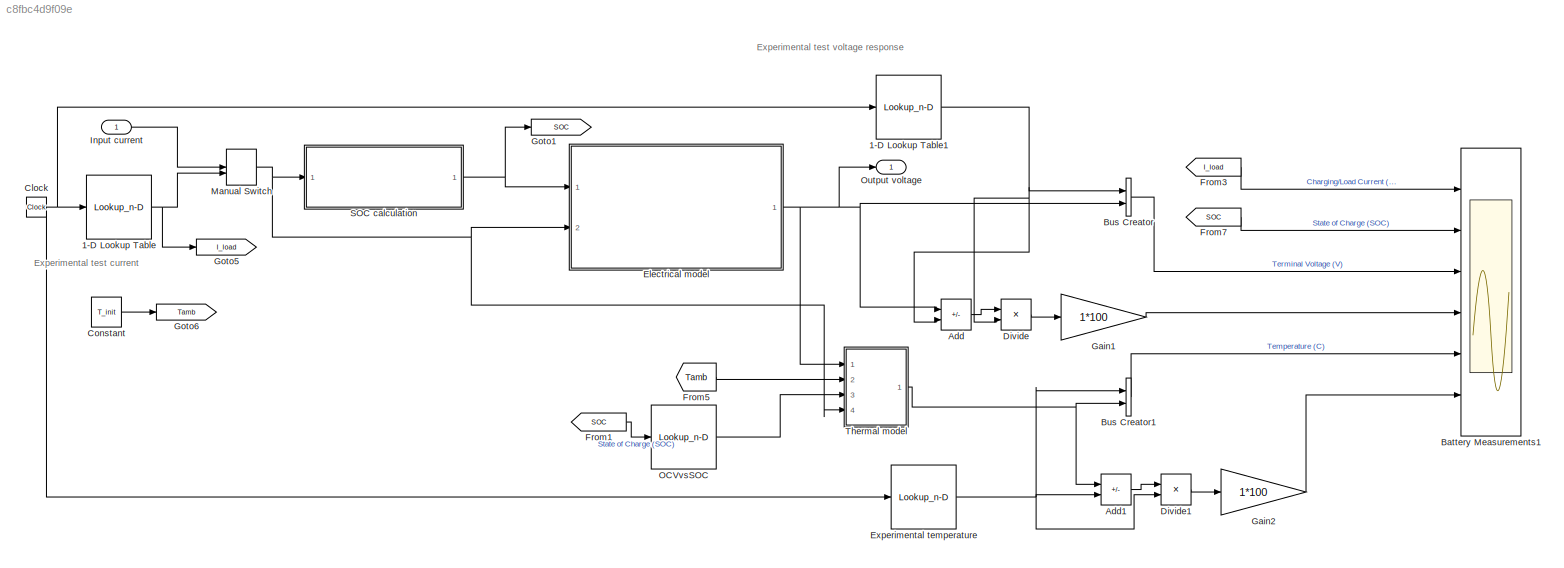
MODEL slx_c8fbc4d9f09e
KIND model
CONFIG AbsTol = 1e-3
CONFIG EnableMultiTasking = on
CONFIG FixedStep = 0.1
CONFIG MaxStep = 1
CONFIG MinStep = auto
CONFIG PreLoadFcn = ssc_lithium_cell_2RC_ini
CONFIG RelTol = 1e-3
CONFIG SampleTimeConstraint = Unconstrained
CONFIG SolverName = FixedStepAuto
CONFIG StartTime = 0.0
CONFIG StopTime = t_sim_end
BLOCK [Lookup_n-D] 1-D Lookup Table
  BreakpointsForDimension1 = Time_test
  InputPortMap = u0
  InternalRulePriority = Speed
  NumberOfTableDimensions = 1
  Ports = [1, 1]
  RndMeth = Simplest
  Table = Ibat_test
BLOCK [Lookup_n-D] 1-D Lookup Table1
  BreakpointsForDimension1 = Time_test
  InputPortMap = u0
  InternalRulePriority = Speed
  NumberOfTableDimensions = 1
  Ports = [1, 1]
  RndMeth = Simplest
  Table = Vbat_test
BLOCK [Sum] Add
  IconShape = rectangular
  Inputs = +-
  Ports = [2, 1]
BLOCK [Sum] Add1
  IconShape = rectangular
  Inputs = +-
  Ports = [2, 1]
BLOCK [Scope] Battery Measurements1
  Floating = off
  NumInputPorts = 6
  Ports = [6]
  ScopeSpecificationString = Simulink.scopes.TimeScopeBlockCfg('CurrentConfiguration', extmgr.ConfigurationSet(extmgr.Configuration('Core','General UI',true,'FigureColor',[0.501960784313725 0.501960784313725 0.501960784313725]),extmgr.Configuration('Core','Source UI',true),extmgr.Configuration('Sources','WiredSimulink',true,'DataLoggingSaveFormat','StructureWithTime','DataLoggingDecimation','1','DataLoggingVariableName','Scop...<+8017ch>
  Tag = PublishScope
BLOCK [BusCreator] Bus Creator
  DisplayOption = bar
  InheritFromInputs = on
  Inputs = 2
  Ports = [2, 1]
BLOCK [BusCreator] Bus Creator1
  DisplayOption = bar
  InheritFromInputs = on
  Inputs = 2
  Ports = [2, 1]
BLOCK [Clock] Clock
BLOCK [Constant] Constant
  Value = T_init
BLOCK [Product] Divide
  Inputs = */
  Ports = [2, 1]
BLOCK [Product] Divide1
  Inputs = */
  Ports = [2, 1]
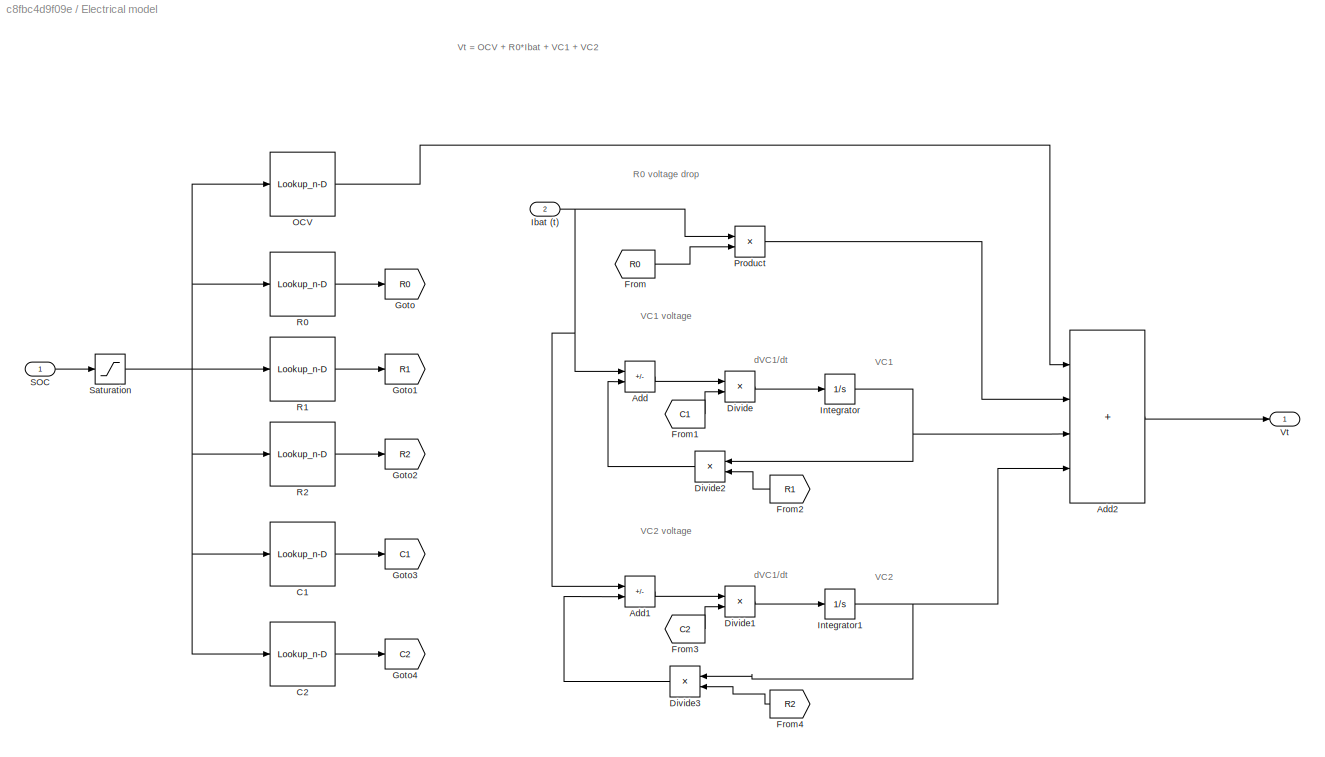
BLOCK [SubSystem] Electrical model
  Ports = [2, 1]
  RequestExecContextInheritance = off
BLOCK [Sum] Electrical model/Add
  IconShape = rectangular
  Inputs = +-
  Ports = [2, 1]
BLOCK [Sum] Electrical model/Add1
  IconShape = rectangular
  Inputs = +-
  Ports = [2, 1]
BLOCK [Sum] Electrical model/Add2
  IconShape = rectangular
  Inputs = ++++
  Ports = [4, 1]
BLOCK [Lookup_n-D] Electrical model/C1
  BreakpointsForDimension1 = SOC_LUT
  BreakpointsForDimension2 = Temperature_LUT
  InputPortMap = u0
  InternalRulePriority = Speed
  NumberOfTableDimensions = 1
  Ports = [1, 1]
  RndMeth = Simplest
  Table = C1_LUT
BLOCK [Lookup_n-D] Electrical model/C2
  BreakpointsForDimension1 = SOC_LUT
  BreakpointsForDimension2 = Temperature_LUT
  InputPortMap = u0
  InternalRulePriority = Speed
  NumberOfTableDimensions = 1
  Ports = [1, 1]
  RndMeth = Simplest
  Table = C2_LUT
BLOCK [Product] Electrical model/Divide
  Inputs = */
  Ports = [2, 1]
BLOCK [Product] Electrical model/Divide1
  Inputs = */
  Ports = [2, 1]
BLOCK [Product] Electrical model/Divide2
  Inputs = */
  Ports = [2, 1]
BLOCK [Product] Electrical model/Divide3
  Inputs = */
  Ports = [2, 1]
BLOCK [From] Electrical model/From
  GotoTag = R0
BLOCK [From] Electrical model/From1
  GotoTag = C1
BLOCK [From] Electrical model/From2
  GotoTag = R1
BLOCK [From] Electrical model/From3
  GotoTag = C2
BLOCK [From] Electrical model/From4
  GotoTag = R2
BLOCK [Goto] Electrical model/Goto
  GotoTag = R0
BLOCK [Goto] Electrical model/Goto1
  GotoTag = R1
BLOCK [Goto] Electrical model/Goto2
  GotoTag = R2
BLOCK [Goto] Electrical model/Goto3
  GotoTag = C1
BLOCK [Goto] Electrical model/Goto4
  GotoTag = C2
BLOCK [Inport] Electrical model/Ibat (t)
  Port = 2
BLOCK [Integrator] Electrical model/Integrator
  Ports = [1, 1]
BLOCK [Integrator] Electrical model/Integrator1
  Ports = [1, 1]
BLOCK [Lookup_n-D] Electrical model/OCV
  BreakpointsForDimension1 = SOC_LUT
  BreakpointsForDimension2 = Temperature_LUT
  InputPortMap = u0
  InternalRulePriority = Speed
  NumberOfTableDimensions = 1
  Ports = [1, 1]
  RndMeth = Simplest
  Table = Em_LUT
BLOCK [Product] Electrical model/Product
  Ports = [2, 1]
BLOCK [Lookup_n-D] Electrical model/R0
  BreakpointsForDimension1 = SOC_LUT
  BreakpointsForDimension2 = Temperature_LUT
  InputPortMap = u0
  InternalRulePriority = Speed
  NumberOfTableDimensions = 1
  Ports = [1, 1]
  RndMeth = Simplest
  Table = R0_LUT
BLOCK [Lookup_n-D] Electrical model/R1
  BreakpointsForDimension1 = SOC_LUT
  BreakpointsForDimension2 = Temperature_LUT
  InputPortMap = u0
  InternalRulePriority = Speed
  NumberOfTableDimensions = 1
  Ports = [1, 1]
  RndMeth = Simplest
  Table = R1_LUT
BLOCK [Lookup_n-D] Electrical model/R2
  BreakpointsForDimension1 = SOC_LUT
  BreakpointsForDimension2 = Temperature_LUT
  InputPortMap = u0
  InternalRulePriority = Speed
  NumberOfTableDimensions = 1
  Ports = [1, 1]
  RndMeth = Simplest
  Table = R2_LUT
BLOCK [Inport] Electrical model/SOC
BLOCK [Saturate] Electrical model/Saturation
  LowerLimit = SOC_LUT(1)
  UpperLimit = SOC_LUT(10)
BLOCK [Outport] Electrical model/Vt
  VectorParamsAs1DForOutWhenUnconnected = off
BLOCK [Lookup_n-D] Experimental temperature
  BreakpointsForDimension1 = Time_test
  InputPortMap = u0
  InternalRulePriority = Speed
  NumberOfTableDimensions = 1
  Ports = [1, 1]
  RndMeth = Simplest
  Table = Tbat_test
BLOCK [From] From1
  GotoTag = SOC
  TagVisibility = global
BLOCK [From] From3
  GotoTag = I_load
  TagVisibility = global
BLOCK [From] From5
  GotoTag = Tamb
  TagVisibility = global
BLOCK [From] From7
  GotoTag = SOC
  TagVisibility = global
BLOCK [Gain] Gain1
  Gain = 1*100
BLOCK [Gain] Gain2
  Gain = 1*100
BLOCK [Goto] Goto1
  GotoTag = SOC
  TagVisibility = global
BLOCK [Goto] Goto5
  GotoTag = I_load
  TagVisibility = global
BLOCK [Goto] Goto6
  GotoTag = Tamb
  NameLocation = top
  TagVisibility = global
BLOCK [Inport] Input current
BLOCK [ManualSwitch] Manual Switch
BLOCK [Lookup_n-D] OCVvsSOC
  BreakpointsForDimension1 = SOC_LUT
  BreakpointsForDimension2 = Temperature_LUT
  InputPortMap = u0
  InternalRulePriority = Speed
  NumberOfTableDimensions = 1
  Ports = [1, 1]
  RndMeth = Simplest
  Table = Em_LUT
BLOCK [Outport] Output voltage
  VectorParamsAs1DForOutWhenUnconnected = off
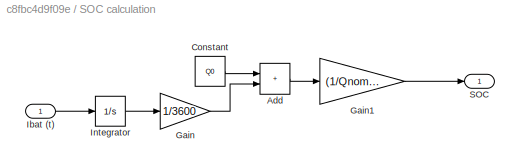
BLOCK [SubSystem] SOC calculation
  Ports = [1, 1]
  RequestExecContextInheritance = off
BLOCK [Sum] SOC calculation/Add
  IconShape = rectangular
  Ports = [2, 1]
BLOCK [Constant] SOC calculation/Constant
  Value = Q0
BLOCK [Gain] SOC calculation/Gain
  Gain = 1/3600
BLOCK [Gain] SOC calculation/Gain1
  Gain = (1/Qnom)*100
BLOCK [Inport] SOC calculation/Ibat (t)
BLOCK [Integrator] SOC calculation/Integrator
  Ports = [1, 1]
BLOCK [Outport] SOC calculation/SOC
  VectorParamsAs1DForOutWhenUnconnected = off
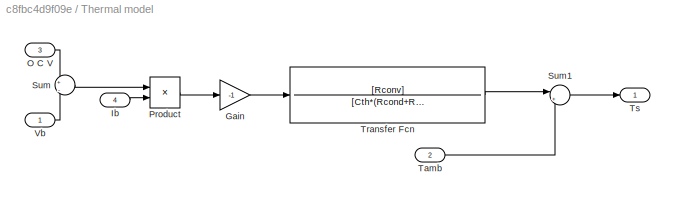
BLOCK [SubSystem] Thermal model
  Ports = [4, 1]
  RequestExecContextInheritance = off
BLOCK [Gain] Thermal model/Gain
  Gain = -1
BLOCK [Inport] Thermal model/Ib
  Port = 4
BLOCK [Inport] Thermal model/O C V
  Port = 3
BLOCK [Product] Thermal model/Product
  Ports = [2, 1]
BLOCK [Sum] Thermal model/Sum
  Inputs = +|-
  Ports = [2, 1]
BLOCK [Sum] Thermal model/Sum1
  Inputs = |++
  Ports = [2, 1]
BLOCK [Inport] Thermal model/Tamb
  Port = 2
BLOCK [TransferFcn] Thermal model/Transfer Fcn
  Denominator = [Cth*(Rcond+Rconv) 1]
  Numerator = [Rconv]
BLOCK [Outport] Thermal model/Ts
BLOCK [Inport] Thermal model/Vb
ANNOTATION (root): Experimental test current
ANNOTATION (root): Experimental test voltage response
ANNOTATION Electrical model: R0 voltage drop
ANNOTATION Electrical model: VC1 voltage
ANNOTATION Electrical model: VC2 voltage
ANNOTATION Electrical model: Vt = OCV + R0*Ibat + VC1 + VC2
ANNOTATION Electrical model: VC1
ANNOTATION Electrical model: VC2
ANNOTATION Electrical model: dVC1/dt
NET 1-D Lookup Table1:1 -> Add:2, Bus Creator:1, Divide:2
NET 1-D Lookup Table:1 -> Goto5:1, Manual Switch:2
LINE Add1:1 -> Divide1:1
LINE Add:1 -> Divide:1
LINE Bus Creator1:1 -> Battery Measurements1:5
LINE Bus Creator:1 -> Battery Measurements1:3
NET Clock:1 -> 1-D Lookup Table1:1, 1-D Lookup Table:1, Experimental temperature:1
LINE Constant:1 -> Goto6:1
LINE Divide1:1 -> Gain2:1
LINE Divide:1 -> Gain1:1
LINE Electrical model/Add1:1 -> Electrical model/Divide1:1
LINE Electrical model/Add2:1 -> Electrical model/Vt:1
LINE Electrical model/Add:1 -> Electrical model/Divide:1
LINE Electrical model/C1:1 -> Electrical model/Goto3:1
LINE Electrical model/C2:1 -> Electrical model/Goto4:1
LINE Electrical model/Divide1:1 -> Electrical model/Integrator1:1
LINE Electrical model/Divide2:1 -> Electrical model/Add:2
LINE Electrical model/Divide3:1 -> Electrical model/Add1:2
LINE Electrical model/Divide:1 -> Electrical model/Integrator:1
LINE Electrical model/From1:1 -> Electrical model/Divide:2
LINE Electrical model/From2:1 -> Electrical model/Divide2:2
LINE Electrical model/From3:1 -> Electrical model/Divide1:2
LINE Electrical model/From4:1 -> Electrical model/Divide3:2
LINE Electrical model/From:1 -> Electrical model/Product:2
NET Electrical model/Ibat (t):1 -> Electrical model/Add1:1, Electrical model/Add:1, Electrical model/Product:1
NET Electrical model/Integrator1:1 -> Electrical model/Add2:4, Electrical model/Divide3:1
NET Electrical model/Integrator:1 -> Electrical model/Add2:3, Electrical model/Divide2:1
LINE Electrical model/OCV:1 -> Electrical model/Add2:1
LINE Electrical model/Product:1 -> Electrical model/Add2:2
LINE Electrical model/R0:1 -> Electrical model/Goto:1
LINE Electrical model/R1:1 -> Electrical model/Goto1:1
LINE Electrical model/R2:1 -> Electrical model/Goto2:1
LINE Electrical model/SOC:1 -> Electrical model/Saturation:1
NET Electrical model/Saturation:1 -> Electrical model/C1:1, Electrical model/C2:1, Electrical model/OCV:1, Electrical model/R0:1, Electrical model/R1:1, Electrical model/R2:1
NET Electrical model:1 -> Add:1, Bus Creator:2, Output voltage:1, Thermal model:1
NET Experimental temperature:1 -> Add1:2, Bus Creator1:1, Divide1:2
LINE From1:1 -> OCVvsSOC:1
LINE From3:1 -> Battery Measurements1:1
LINE From5:1 -> Thermal model:2
LINE From7:1 -> Battery Measurements1:2
LINE Gain1:1 -> Battery Measurements1:4
LINE Gain2:1 -> Battery Measurements1:6
LINE Input current:1 -> Manual Switch:1
NET Manual Switch:1 -> Electrical model:2, SOC calculation:1, Thermal model:4
LINE OCVvsSOC:1 -> Thermal model:3
LINE SOC calculation/Add:1 -> SOC calculation/Gain1:1
LINE SOC calculation/Constant:1 -> SOC calculation/Add:1
LINE SOC calculation/Gain1:1 -> SOC calculation/SOC:1
LINE SOC calculation/Gain:1 -> SOC calculation/Add:2
LINE SOC calculation/Ibat (t):1 -> SOC calculation/Integrator:1
LINE SOC calculation/Integrator:1 -> SOC calculation/Gain:1
NET SOC calculation:1 -> Electrical model:1, Goto1:1
LINE Thermal model/Gain:1 -> Thermal model/Transfer Fcn:1
LINE Thermal model/Ib:1 -> Thermal model/Product:2
LINE Thermal model/O C V:1 -> Thermal model/Sum:1
LINE Thermal model/Product:1 -> Thermal model/Gain:1
LINE Thermal model/Sum1:1 -> Thermal model/Ts:1
LINE Thermal model/Sum:1 -> Thermal model/Product:1
LINE Thermal model/Tamb:1 -> Thermal model/Sum1:2
LINE Thermal model/Transfer Fcn:1 -> Thermal model/Sum1:1
LINE Thermal model/Vb:1 -> Thermal model/Sum:2
NET Thermal model:1 -> Add1:1, Bus Creator1:2
note: NET lines group one-source signal fan-out (src -> all destinations, sorted); 1:1 wires keep LINE
